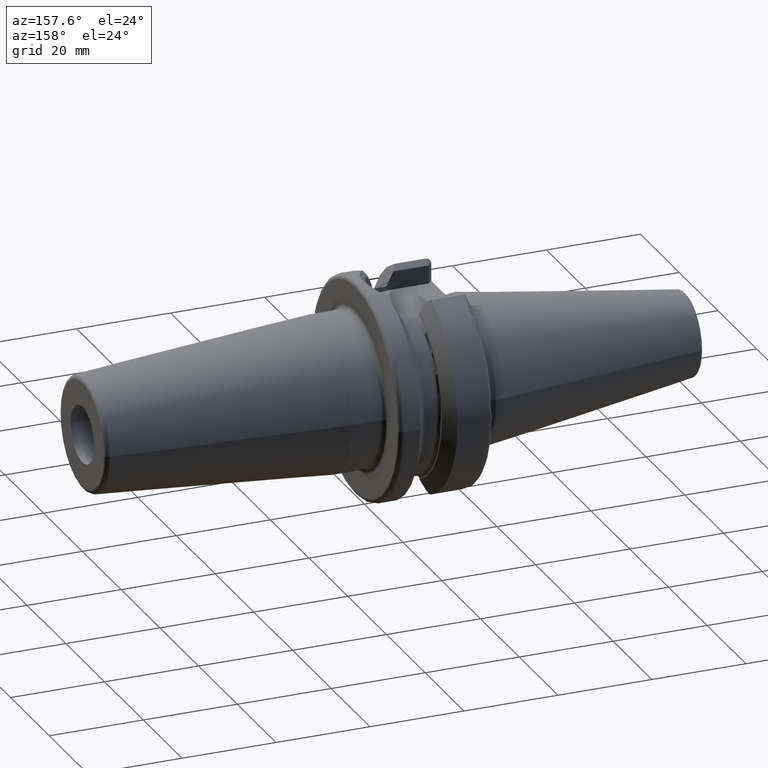
[diagram: clean part render]
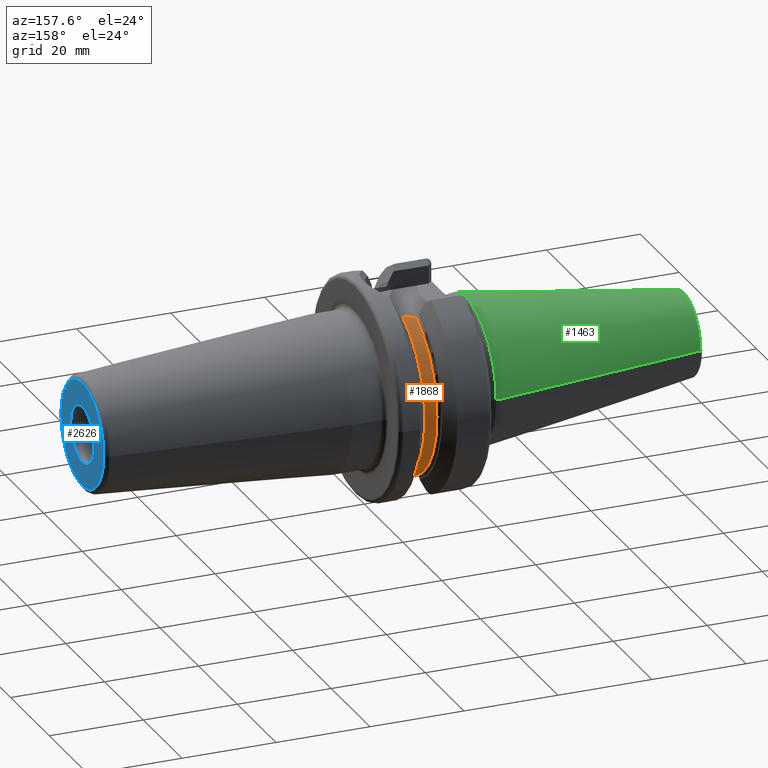
[diagram: same view with three faces highlighted in distinct colors, each labeled with its STEP entity id]
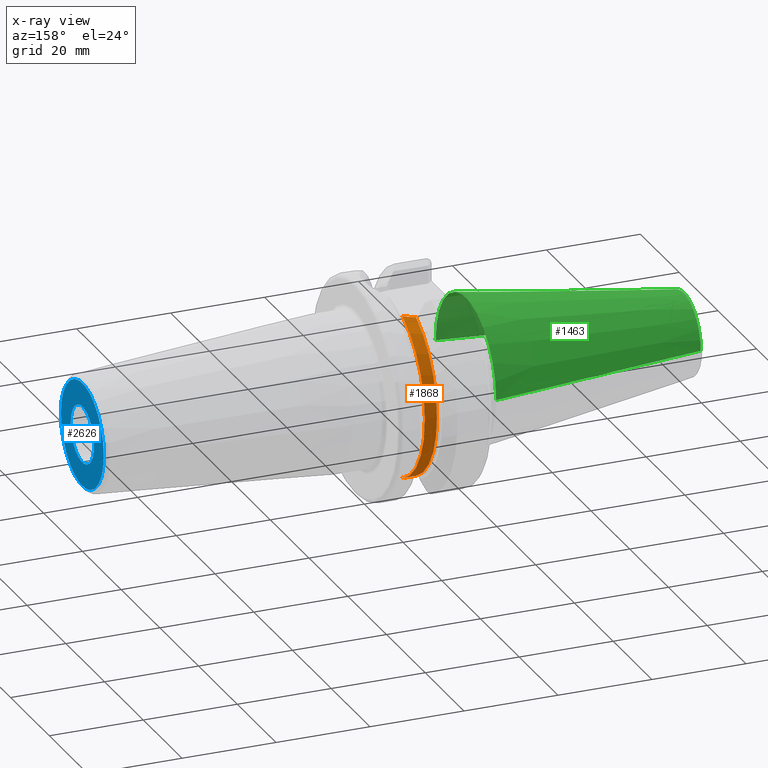
[diagram: x-ray of the same camera — body ghosted, the three highlighted faces saturated]
A machine part, auxiliary view with three faces highlighted in distinct colors.
The next image is the same camera in x-ray (body ghosted, the three faces saturated) — at least one of them is partly hidden behind the body in this view.
Their STEP definitions:

[orange] entity #1868 — the highlighted cylindrical surface (partial cylindrical patch) has radius 18.875 mm, axis along (1, 0, 0).
#394=CARTESIAN_POINT('',(1.48875E1,0.E0,0.E0));
#395=DIRECTION('',(-1.E0,0.E0,0.E0));
#396=DIRECTION('',(0.E0,3.805635924078E-1,9.247547524256E-1));
#397=AXIS2_PLACEMENT_3D('',#394,#395,#396);
#414=CARTESIAN_POINT('',(1.23125E1,0.E0,0.E0));
#415=DIRECTION('',(-1.E0,0.E0,0.E0));
#416=DIRECTION('',(0.E0,4.244671493312E-1,9.054433384473E-1));
#417=AXIS2_PLACEMENT_3D('',#414,#415,#416);
#419=CARTESIAN_POINT('',(1.23125E1,8.011817443627E0,-1.709024301319E1));
#420=CARTESIAN_POINT('',(1.260448853217E1,7.969632667405E0,-1.711001901788E1));
#421=CARTESIAN_POINT('',(1.318480954598E1,7.853460451226E0,-1.716416337693E1));
#422=CARTESIAN_POINT('',(1.404920492439E1,7.578313334037E0,-1.728803651447E1));
#423=CARTESIAN_POINT('',(1.461036501125E1,7.327142609799E0,-1.739548376922E1));
#424=CARTESIAN_POINT('',(1.48875E1,7.183137806697E0,-1.745474595203E1));
#426=CARTESIAN_POINT('',(1.48875E1,7.183137806697E0,1.745474595203E1));
#427=CARTESIAN_POINT('',(1.461036501125E1,7.327142609799E0,1.739548376922E1));
#428=CARTESIAN_POINT('',(1.404920492439E1,7.578313334037E0,1.728803651447E1));
#429=CARTESIAN_POINT('',(1.318480954598E1,7.853460451226E0,1.716416337693E1));
#430=CARTESIAN_POINT('',(1.260448853217E1,7.969632667405E0,1.711001901788E1));
#431=CARTESIAN_POINT('',(1.23125E1,8.011817443627E0,1.709024301319E1));
#1176=CARTESIAN_POINT('',(1.23125E1,8.011817443627E0,1.709024301319E1));
#1177=CARTESIAN_POINT('',(1.23125E1,8.011817443627E0,-1.709024301319E1));
#1178=VERTEX_POINT('',#1176);
#1179=VERTEX_POINT('',#1177);
#1188=CARTESIAN_POINT('',(1.48875E1,7.183137806697E0,1.745474595203E1));
#1189=CARTESIAN_POINT('',(1.48875E1,7.183137806697E0,-1.745474595203E1));
#1190=VERTEX_POINT('',#1188);
#1191=VERTEX_POINT('',#1189);
#1855=CARTESIAN_POINT('',(9.2E0,0.E0,0.E0));
#1856=DIRECTION('',(1.E0,0.E0,0.E0));
#1857=DIRECTION('',(0.E0,-1.E0,0.E0));
#1858=AXIS2_PLACEMENT_3D('',#1855,#1856,#1857);
#1859=CYLINDRICAL_SURFACE('',#1858,1.8875E1);
#1861=ORIENTED_EDGE('',*,*,#1860,.T.);
#1862=ORIENTED_EDGE('',*,*,#1774,.T.);
#1863=ORIENTED_EDGE('',*,*,#1832,.F.);
#1865=ORIENTED_EDGE('',*,*,#1864,.T.);
#1866=EDGE_LOOP('',(#1861,#1862,#1863,#1865));
#1867=FACE_OUTER_BOUND('',#1866,.F.);
#1868=ADVANCED_FACE('',(#1867),#1859,.T.);
#398=CIRCLE('',#397,1.8875E1);
#418=CIRCLE('',#417,1.8875E1);
#425=B_SPLINE_CURVE_WITH_KNOTS('',3,(#419,#420,#421,#422,#423,#424),
.UNSPECIFIED.,.F.,.F.,(4,1,1,4),(0.E0,3.333333333333E-1,6.666666666667E-1,1.E0),
.UNSPECIFIED.);
#432=B_SPLINE_CURVE_WITH_KNOTS('',3,(#426,#427,#428,#429,#430,#431),
.UNSPECIFIED.,.F.,.F.,(4,1,1,4),(0.E0,3.333333333333E-1,6.666666666667E-1,1.E0),
.UNSPECIFIED.);
#1774=EDGE_CURVE('',#1179,#1191,#425,.T.);
#1832=EDGE_CURVE('',#1190,#1191,#398,.T.);
#1860=EDGE_CURVE('',#1178,#1179,#418,.T.);
#1864=EDGE_CURVE('',#1190,#1178,#432,.T.);

[blue] entity #2626 — the highlighted planar face has unit normal (1, 0, 0).
#898=CARTESIAN_POINT('',(8.E1,0.E0,0.E0));
#899=DIRECTION('',(-1.E0,0.E0,0.E0));
#900=DIRECTION('',(0.E0,-1.E0,0.E0));
#901=AXIS2_PLACEMENT_3D('',#898,#899,#900);
#903=CARTESIAN_POINT('',(8.E1,0.E0,0.E0));
#904=DIRECTION('',(-1.E0,0.E0,0.E0));
#905=DIRECTION('',(0.E0,1.E0,0.E0));
#906=AXIS2_PLACEMENT_3D('',#903,#904,#905);
#908=CARTESIAN_POINT('',(8.E1,0.E0,0.E0));
#909=DIRECTION('',(-1.E0,0.E0,0.E0));
#910=DIRECTION('',(0.E0,1.E0,0.E0));
#911=AXIS2_PLACEMENT_3D('',#908,#909,#910);
#913=CARTESIAN_POINT('',(8.E1,0.E0,0.E0));
#914=DIRECTION('',(-1.E0,0.E0,0.E0));
#915=DIRECTION('',(0.E0,-1.E0,0.E0));
#916=AXIS2_PLACEMENT_3D('',#913,#914,#915);
#1379=CARTESIAN_POINT('',(8.E1,-6.E0,0.E0));
#1380=CARTESIAN_POINT('',(8.E1,6.E0,0.E0));
#1381=VERTEX_POINT('',#1379);
#1382=VERTEX_POINT('',#1380);
#1399=CARTESIAN_POINT('',(8.E1,1.107560950834E1,0.E0));
#1400=CARTESIAN_POINT('',(8.E1,-1.107560950834E1,0.E0));
#1401=VERTEX_POINT('',#1399);
#1402=VERTEX_POINT('',#1400);
#2611=CARTESIAN_POINT('',(8.E1,0.E0,0.E0));
#2612=DIRECTION('',(1.E0,0.E0,0.E0));
#2613=DIRECTION('',(0.E0,-1.E0,0.E0));
#2614=AXIS2_PLACEMENT_3D('',#2611,#2612,#2613);
#2615=PLANE('',#2614);
#2616=ORIENTED_EDGE('',*,*,#2605,.T.);
#2617=ORIENTED_EDGE('',*,*,#2591,.T.);
#2618=EDGE_LOOP('',(#2616,#2617));
#2619=FACE_OUTER_BOUND('',#2618,.F.);
#2621=ORIENTED_EDGE('',*,*,#2620,.F.);
#2623=ORIENTED_EDGE('',*,*,#2622,.F.);
#2624=EDGE_LOOP('',(#2621,#2623));
#2625=FACE_BOUND('',#2624,.F.);
#2626=ADVANCED_FACE('',(#2619,#2625),#2615,.T.);
#902=CIRCLE('',#901,6.E0);
#907=CIRCLE('',#906,6.E0);
#912=CIRCLE('',#911,1.107560950834E1);
#917=CIRCLE('',#916,1.107560950834E1);
#2591=EDGE_CURVE('',#1402,#1401,#917,.T.);
#2605=EDGE_CURVE('',#1401,#1402,#912,.T.);
#2620=EDGE_CURVE('',#1381,#1382,#902,.T.);
#2622=EDGE_CURVE('',#1382,#1381,#907,.T.);

[green] entity #1463 — the highlighted conical surface has half-angle 8.298 deg.
#37=CARTESIAN_POINT('',(-4.797215933459E1,0.E0,0.E0));
#38=DIRECTION('',(1.E0,0.E0,0.E0));
#39=DIRECTION('',(0.E0,1.E0,0.E0));
#40=AXIS2_PLACEMENT_3D('',#37,#38,#39);
#42=CARTESIAN_POINT('',(-1.629230650827E0,0.E0,0.E0));
#43=DIRECTION('',(1.E0,0.E0,0.E0));
#44=DIRECTION('',(0.E0,1.E0,0.E0));
#45=AXIS2_PLACEMENT_3D('',#42,#43,#44);
#47=DIRECTION('',(-9.895312636440E-1,-1.443186691705E-1,0.E0));
#48=VECTOR('',#47,4.683321324594E1);
#49=CARTESIAN_POINT('',(-1.629230650827E0,1.563738406209E1,0.E0));
#50=LINE('',#49,#48);
#51=DIRECTION('',(-9.895312636440E-1,1.443186691705E-1,0.E0));
#52=VECTOR('',#51,4.683321324594E1);
#53=CARTESIAN_POINT('',(-1.629230650827E0,-1.563738406209E1,0.E0));
#54=LINE('',#53,#52);
#1156=CARTESIAN_POINT('',(-4.797215933459E1,8.878477053461E0,0.E0));
#1158=VERTEX_POINT('',#1156);
#1160=CARTESIAN_POINT('',(-4.797215933459E1,-8.878477053461E0,0.E0));
#1162=VERTEX_POINT('',#1160);
#1371=CARTESIAN_POINT('',(-1.629230650827E0,1.563738406209E1,0.E0));
#1372=VERTEX_POINT('',#1371);
#1373=CARTESIAN_POINT('',(-1.629230650827E0,-1.563738406209E1,0.E0));
#1374=VERTEX_POINT('',#1373);
#1449=CARTESIAN_POINT('',(-2.480069499271E1,0.E0,0.E0));
#1450=DIRECTION('',(1.E0,0.E0,0.E0));
#1451=DIRECTION('',(0.E0,-1.E0,0.E0));
#1452=AXIS2_PLACEMENT_3D('',#1449,#1450,#1451);
#1453=CONICAL_SURFACE('',#1452,1.225793055778E1,8.297826828206E0);
#1455=ORIENTED_EDGE('',*,*,#1454,.F.);
#1457=ORIENTED_EDGE('',*,*,#1456,.T.);
#1459=ORIENTED_EDGE('',*,*,#1458,.T.);
#1460=ORIENTED_EDGE('',*,*,#1442,.F.);
#1461=EDGE_LOOP('',(#1455,#1457,#1459,#1460));
#1462=FACE_OUTER_BOUND('',#1461,.F.);
#1463=ADVANCED_FACE('',(#1462),#1453,.T.);
#41=CIRCLE('',#40,8.878477053461E0);
#46=CIRCLE('',#45,1.563738406209E1);
#1442=EDGE_CURVE('',#1158,#1162,#41,.T.);
#1454=EDGE_CURVE('',#1372,#1158,#50,.T.);
#1456=EDGE_CURVE('',#1372,#1374,#46,.T.);
#1458=EDGE_CURVE('',#1374,#1162,#54,.T.);